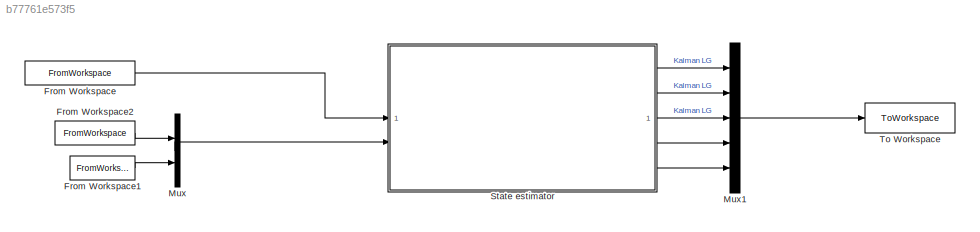
MODEL slx_b77761e573f5
KIND model
CONFIG AbsTol = auto
CONFIG EnableMultiTasking = off
CONFIG FixedStep = auto
CONFIG MaxStep = auto
CONFIG MinStep = auto
CONFIG RelTol = 1e-3
CONFIG SampleTimeConstraint = Unconstrained
CONFIG SolverName = VariableStepAuto
CONFIG StartTime = 0.0
CONFIG StopTime = sim_time-0.02
BLOCK [FromWorkspace] From Workspace
  OutputAfterFinalValue = Holding final value
  SampleTime = Ts
  VariableName = steer_rate
BLOCK [FromWorkspace] From Workspace1
  OutputAfterFinalValue = Holding final value
  SampleTime = Ts
  VariableName = measurements
BLOCK [FromWorkspace] From Workspace2
  OutputAfterFinalValue = Holding final value
  SampleTime = Ts
  VariableName = measurementsGPS
BLOCK [Mux] Mux
  DisplayOption = bar
  Inputs = 2
BLOCK [Mux] Mux1
  DisplayOption = bar
  Inputs = 5
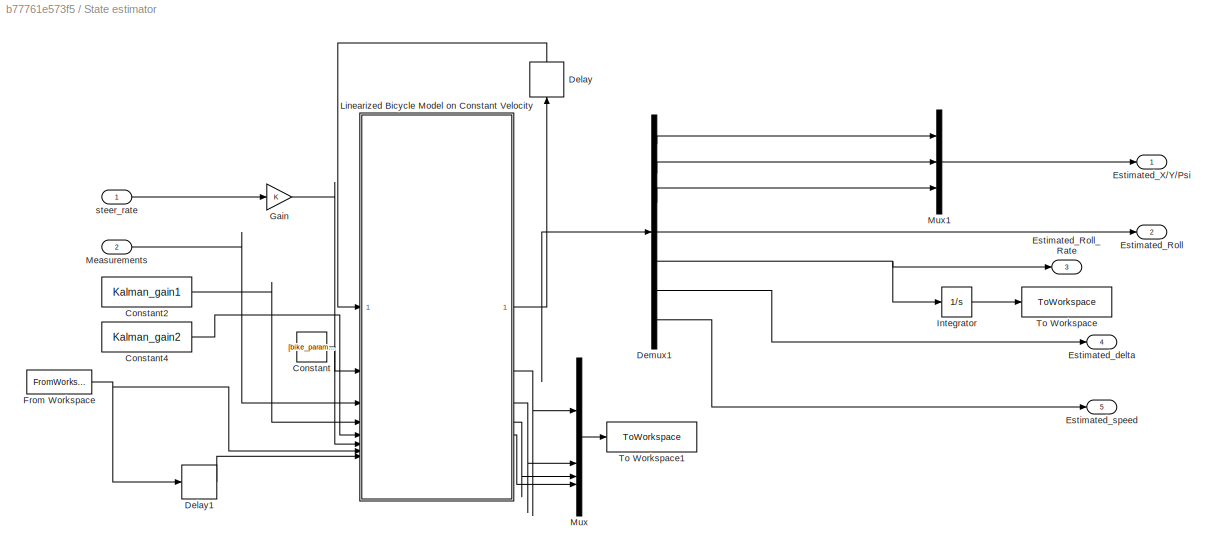
BLOCK [SubSystem] State estimator
BLOCK [Constant] State estimator/Constant
  Value = [bike_params.Xgps_mod bike_params.Ygps_mod bike_params.Hgps_mod]
BLOCK [Constant] State estimator/Constant2
  SampleTime = Ts
  Value = Kalman_gain1
BLOCK [Constant] State estimator/Constant4
  SampleTime = Ts
  Value = Kalman_gain2
BLOCK [Delay] State estimator/Delay
  DelayLength = 1
  InitialCondition = [initial_state_estimate.x initial_state_estimate.y initial_state_estimate.heading initial_state.roll initial_state.roll_rate initial_state.steering v]
  InputPortMap = u0
  NameLocation = right
  SampleTime = Ts
BLOCK [Delay] State estimator/Delay1
  DelayLength = 1
  InputPortMap = u0
BLOCK [Demux] State estimator/Demux1
  Outputs = 7
BLOCK [Outport] State estimator/Estimated_Roll
  Port = 2
  VectorParamsAs1DForOutWhenUnconnected = off
BLOCK [Outport] State estimator/Estimated_Roll_Rate
  Port = 3
  VectorParamsAs1DForOutWhenUnconnected = off
BLOCK [Outport] State estimator/Estimated_X//Y//Psi
  VectorParamsAs1DForOutWhenUnconnected = off
BLOCK [Outport] State estimator/Estimated_delta
  Port = 4
  VectorParamsAs1DForOutWhenUnconnected = off
BLOCK [Outport] State estimator/Estimated_speed
  Port = 5
  VectorParamsAs1DForOutWhenUnconnected = off
BLOCK [FromWorkspace] State estimator/From Workspace
  VariableName = gpsflag
BLOCK [Gain] State estimator/Gain
BLOCK [Integrator] State estimator/Integrator
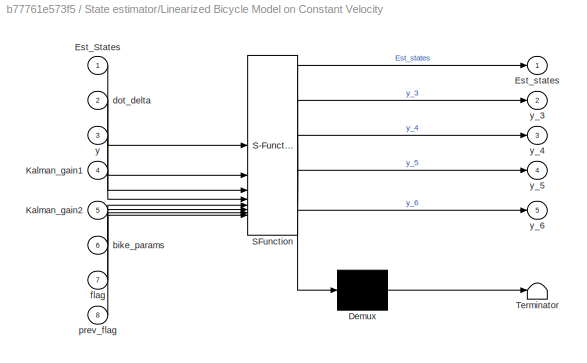
BLOCK [SubSystem] State estimator/Linearized Bicycle Model on Constant Velocity
  ErrorFcn = Stateflow.Translate.translate
  PermitHierarchicalResolution = ExplicitOnly
  SFBlockType = MATLAB Function
  TreatAsAtomicUnit = on
BLOCK [Demux] State estimator/Linearized Bicycle Model on Constant Velocity/ Demux 
  Outputs = 1
BLOCK [S-Function] State estimator/Linearized Bicycle Model on Constant Velocity/ SFunction 
  EnableBusSupport = on
  FunctionName = sf_sfun
  Parameters = A_d,B_d,C1,C2,D1,D2,T,gps_delay
  PortCounts = [8 6]
  SFcnIsStateOwnerBlock = off
  SFunctionDeploymentMode = off
  Tag = Stateflow S-Function 10
BLOCK [Terminator] State estimator/Linearized Bicycle Model on Constant Velocity/ Terminator 
BLOCK [Inport] State estimator/Linearized Bicycle Model on Constant Velocity/Est_States
BLOCK [Outport] State estimator/Linearized Bicycle Model on Constant Velocity/Est_states
  VectorParamsAs1DForOutWhenUnconnected = off
BLOCK [Inport] State estimator/Linearized Bicycle Model on Constant Velocity/Kalman_gain1
  Port = 4
BLOCK [Inport] State estimator/Linearized Bicycle Model on Constant Velocity/Kalman_gain2
  Port = 5
BLOCK [Inport] State estimator/Linearized Bicycle Model on Constant Velocity/bike_params
  Port = 6
BLOCK [Inport] State estimator/Linearized Bicycle Model on Constant Velocity/dot_delta
  Port = 2
BLOCK [Inport] State estimator/Linearized Bicycle Model on Constant Velocity/flag
  Port = 7
BLOCK [Inport] State estimator/Linearized Bicycle Model on Constant Velocity/prev_flag
  Port = 8
BLOCK [Inport] State estimator/Linearized Bicycle Model on Constant Velocity/y
  Port = 3
BLOCK [Outport] State estimator/Linearized Bicycle Model on Constant Velocity/y_3
  Port = 2
BLOCK [Outport] State estimator/Linearized Bicycle Model on Constant Velocity/y_4
  Port = 3
BLOCK [Outport] State estimator/Linearized Bicycle Model on Constant Velocity/y_5
  Port = 4
BLOCK [Outport] State estimator/Linearized Bicycle Model on Constant Velocity/y_6
  Port = 5
BLOCK [Inport] State estimator/Measurements
  Port = 2
BLOCK [Mux] State estimator/Mux
  DisplayOption = bar
BLOCK [Mux] State estimator/Mux1
  DisplayOption = bar
  Inputs = 3
BLOCK [ToWorkspace] State estimator/To Workspace
  FixptAsFi = on
  MaxDataPoints = inf
  SampleTime = -1
  SaveFormat = Timeseries
  VariableName = integration_rollrate
BLOCK [ToWorkspace] State estimator/To Workspace1
  FixptAsFi = on
  MaxDataPoints = inf
  SampleTime = -1
  SaveFormat = Timeseries
  VariableName = y_hat
BLOCK [Inport] State estimator/steer_rate
BLOCK [ToWorkspace] To Workspace
  FixptAsFi = on
  MaxDataPoints = inf
  SampleTime = -1
  SaveFormat = Timeseries
  VariableName = sim_Kalman
LINE From Workspace1:1 -> Mux:2
LINE From Workspace2:1 -> Mux:1
LINE From Workspace:1 -> State estimator:1
LINE Mux1:1 -> To Workspace:1
LINE Mux:1 -> State estimator:2
LINE State estimator/Constant2:1 -> State estimator/Linearized Bicycle Model on Constant Velocity:4
LINE State estimator/Constant4:1 -> State estimator/Linearized Bicycle Model on Constant Velocity:5
LINE State estimator/Constant:1 -> State estimator/Linearized Bicycle Model on Constant Velocity:6
LINE State estimator/Delay1:1 -> State estimator/Linearized Bicycle Model on Constant Velocity:8
LINE State estimator/Delay:1 -> State estimator/Linearized Bicycle Model on Constant Velocity:1
LINE State estimator/Demux1:1 -> State estimator/Mux1:1
LINE State estimator/Demux1:2 -> State estimator/Mux1:2
LINE State estimator/Demux1:3 -> State estimator/Mux1:3
LINE State estimator/Demux1:4 -> State estimator/Estimated_Roll:1
NET State estimator/Demux1:5 -> State estimator/Estimated_Roll_Rate:1, State estimator/Integrator:1
LINE State estimator/Demux1:6 -> State estimator/Estimated_delta:1
LINE State estimator/Demux1:7 -> State estimator/Estimated_speed:1
NET State estimator/From Workspace:1 -> State estimator/Delay1:1, State estimator/Linearized Bicycle Model on Constant Velocity:7
LINE State estimator/Gain:1 -> State estimator/Linearized Bicycle Model on Constant Velocity:2
LINE State estimator/Integrator:1 -> State estimator/To Workspace:1
NET State estimator/Linearized Bicycle Model on Constant Velocity:1 -> State estimator/Delay:1, State estimator/Demux1:1
LINE State estimator/Linearized Bicycle Model on Constant Velocity:2 -> State estimator/Mux:1
LINE State estimator/Linearized Bicycle Model on Constant Velocity:3 -> State estimator/Mux:2
LINE State estimator/Linearized Bicycle Model on Constant Velocity:4 -> State estimator/Mux:3
LINE State estimator/Linearized Bicycle Model on Constant Velocity:5 -> State estimator/Mux:4
LINE State estimator/Measurements:1 -> State estimator/Linearized Bicycle Model on Constant Velocity:3
LINE State estimator/Mux1:1 -> State estimator/Estimated_X//Y//Psi:1
LINE State estimator/Mux:1 -> State estimator/To Workspace1:1
LINE State estimator/steer_rate:1 -> State estimator/Gain:1
LINE State estimator:1 -> Mux1:1
LINE State estimator:2 -> Mux1:2
LINE State estimator:3 -> Mux1:3
LINE State estimator:4 -> Mux1:4
LINE State estimator:5 -> Mux1:5
note: NET lines group one-source signal fan-out (src -> all destinations, sorted); 1:1 wires keep LINE
CHART State estimator/Linearized Bicycle Model
on Constant Velocity states=1 transitions=1
  STATE_LABEL 'eML_blk_kernel()'
  STATE_LABEL 'SCRIPT:\nfunction [Est_states,y_3, y_4, y_5, y_6] = fcn(Est_States, dot_delta, y, Kalman_gain1, Kalman_gain2, bike_params, flag, prev_flag, A_d, B_d, C1, C2, D1, D2, T, gps_delay)\n% description \n% Inputs\n%   Est_States := [X Y psi phi phi_dot delta v] are global at time t \n%   dot_delta_e := effective steering rate\n%   y := measurement vector\n%   Kalman_gain1 := Computed state_feedback gain includi...<+3608ch>'
CHART  states=0 transitions=0
